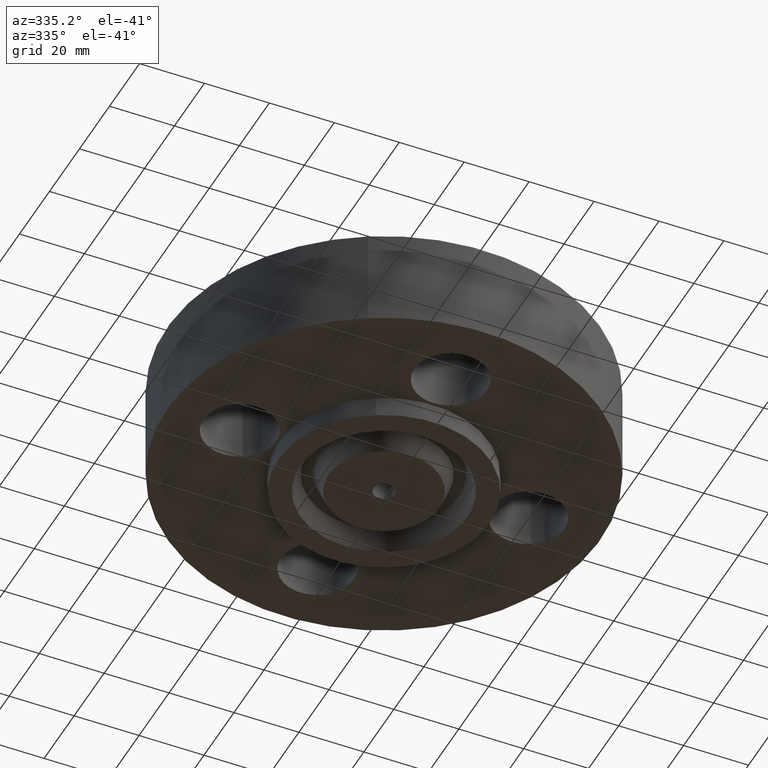
[diagram: clean part render]
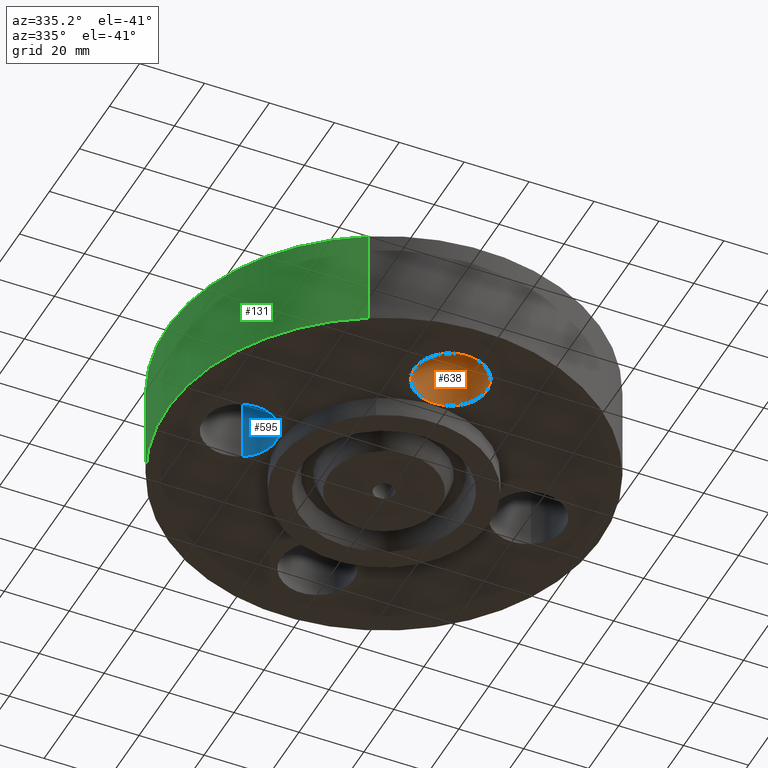
[diagram: same view with three faces highlighted in distinct colors, each labeled with its STEP entity id]
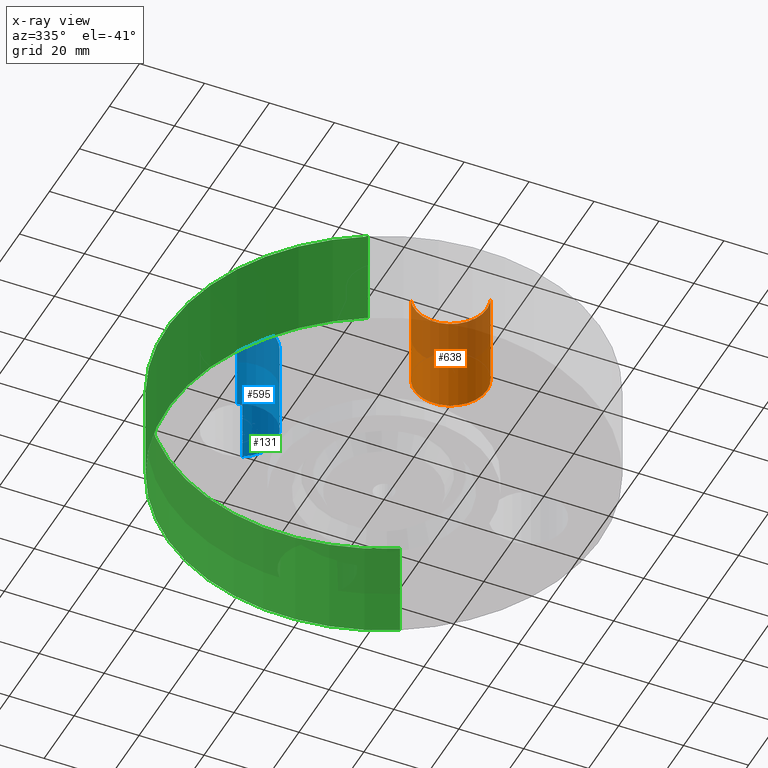
[diagram: x-ray of the same camera — body ghosted, the three highlighted faces saturated]
A machine part, auxiliary view with three faces highlighted in distinct colors.
The next image is the same camera in x-ray (body ghosted, the three faces saturated) — at least one of them is partly hidden behind the body in this view.
Their STEP definitions:

[orange] entity #638 — the highlighted cylindrical surface (partial cylindrical patch) has radius 11.176 mm, axis along (-0, 0, -1).
#527=AXIS2_PLACEMENT_3D('Circle Axis2P3D',#525,#526,$) ;
#599=AXIS2_PLACEMENT_3D('Cylinder Axis2P3D',#596,#597,#598) ;
#629=AXIS2_PLACEMENT_3D('Circle Axis2P3D',#627,#628,$) ;
#520=CARTESIAN_POINT('Vertex',(0.386136327233,-1.96094723699,0.)) ;
#522=CARTESIAN_POINT('Vertex',(-0.386136327233,-1.53905276302,0.)) ;
#525=CARTESIAN_POINT('Axis2P3D Location',(2.44773580232E-016,-1.75000000001,0.)) ;
#596=CARTESIAN_POINT('Axis2P3D Location',(2.14313189852E-016,-1.75000000001,1.18606299213)) ;
#601=CARTESIAN_POINT('Line Origine',(0.386136327233,-1.96094723699,0.595000000002)) ;
#605=CARTESIAN_POINT('Vertex',(0.386136327233,-1.96094723699,1.19)) ;
#608=CARTESIAN_POINT('Line Origine',(-0.386136327233,-1.53905276302,0.595000000002)) ;
#612=CARTESIAN_POINT('Vertex',(-0.386136327233,-1.53905276302,1.19)) ;
#627=CARTESIAN_POINT('Axis2P3D Location',(2.14313189852E-016,-1.75000000001,1.19)) ;
#526=DIRECTION('Axis2P3D Direction',(0.,0.,-0.0393700787402)) ;
#597=DIRECTION('Axis2P3D Direction',(-0.,0.,-0.0393700787402)) ;
#598=DIRECTION('Axis2P3D XDirection',(-0.0345504945626,0.0188750212049,0.)) ;
#602=DIRECTION('Vector Direction',(0.,0.,-0.0393700787402)) ;
#609=DIRECTION('Vector Direction',(0.,0.,-0.0393700787402)) ;
#628=DIRECTION('Axis2P3D Direction',(-0.,0.,-0.0393700787402)) ;
#603=VECTOR('Line Direction',#602,0.0393700787402) ;
#610=VECTOR('Line Direction',#609,0.0393700787402) ;
#633=ORIENTED_EDGE('',*,*,#614,.F.) ;
#634=ORIENTED_EDGE('',*,*,#529,.T.) ;
#635=ORIENTED_EDGE('',*,*,#607,.T.) ;
#636=ORIENTED_EDGE('',*,*,#631,.F.) ;
#638=ADVANCED_FACE('PartBody',(#637),#600,.F.) ;
#528=CIRCLE('generated circle',#527,0.440000000002) ;
#630=CIRCLE('generated circle',#629,0.440000000002) ;
#600=CYLINDRICAL_SURFACE('generated cylinder',#599,0.440000000002) ;
#529=EDGE_CURVE('',#523,#521,#528,.T.) ;
#607=EDGE_CURVE('',#521,#606,#604,.F.) ;
#614=EDGE_CURVE('',#523,#613,#611,.F.) ;
#631=EDGE_CURVE('',#613,#606,#630,.T.) ;
#632=EDGE_LOOP('',(#633,#634,#635,#636)) ;
#637=FACE_OUTER_BOUND('',#632,.T.) ;
#604=LINE('Line',#601,#603) ;
#611=LINE('Line',#608,#610) ;
#521=VERTEX_POINT('',#520) ;
#523=VERTEX_POINT('',#522) ;
#606=VERTEX_POINT('',#605) ;
#613=VERTEX_POINT('',#612) ;

[blue] entity #595 — the highlighted cylindrical surface (partial cylindrical patch) has radius 11.176 mm, axis along (0, 0, -1).
#545=AXIS2_PLACEMENT_3D('Circle Axis2P3D',#543,#544,$) ;
#556=AXIS2_PLACEMENT_3D('Cylinder Axis2P3D',#553,#554,#555) ;
#586=AXIS2_PLACEMENT_3D('Circle Axis2P3D',#584,#585,$) ;
#538=CARTESIAN_POINT('Vertex',(-1.96094723699,-0.386136327233,0.)) ;
#540=CARTESIAN_POINT('Vertex',(-1.53905276302,0.386136327233,0.)) ;
#543=CARTESIAN_POINT('Axis2P3D Location',(-1.75000000001,-2.79741234551E-016,0.)) ;
#553=CARTESIAN_POINT('Axis2P3D Location',(-1.75000000001,-3.21469784777E-016,1.18606299213)) ;
#558=CARTESIAN_POINT('Line Origine',(-1.96094723699,-0.386136327233,0.595000000002)) ;
#562=CARTESIAN_POINT('Vertex',(-1.96094723699,-0.386136327233,1.19)) ;
#565=CARTESIAN_POINT('Line Origine',(-1.53905276302,0.386136327233,0.595000000002)) ;
#569=CARTESIAN_POINT('Vertex',(-1.53905276302,0.386136327233,1.19)) ;
#584=CARTESIAN_POINT('Axis2P3D Location',(-1.75000000001,-3.21469784777E-016,1.19)) ;
#544=DIRECTION('Axis2P3D Direction',(0.,0.,-0.0393700787402)) ;
#554=DIRECTION('Axis2P3D Direction',(0.,0.,-0.0393700787402)) ;
#555=DIRECTION('Axis2P3D XDirection',(0.0188750212049,0.0345504945626,0.)) ;
#559=DIRECTION('Vector Direction',(0.,0.,-0.0393700787402)) ;
#566=DIRECTION('Vector Direction',(0.,0.,-0.0393700787402)) ;
#585=DIRECTION('Axis2P3D Direction',(0.,0.,-0.0393700787402)) ;
#560=VECTOR('Line Direction',#559,0.0393700787402) ;
#567=VECTOR('Line Direction',#566,0.0393700787402) ;
#590=ORIENTED_EDGE('',*,*,#571,.F.) ;
#591=ORIENTED_EDGE('',*,*,#547,.T.) ;
#592=ORIENTED_EDGE('',*,*,#564,.T.) ;
#593=ORIENTED_EDGE('',*,*,#588,.F.) ;
#595=ADVANCED_FACE('PartBody',(#594),#557,.F.) ;
#546=CIRCLE('generated circle',#545,0.440000000002) ;
#587=CIRCLE('generated circle',#586,0.440000000002) ;
#557=CYLINDRICAL_SURFACE('generated cylinder',#556,0.440000000002) ;
#547=EDGE_CURVE('',#541,#539,#546,.T.) ;
#564=EDGE_CURVE('',#539,#563,#561,.F.) ;
#571=EDGE_CURVE('',#541,#570,#568,.F.) ;
#588=EDGE_CURVE('',#570,#563,#587,.T.) ;
#589=EDGE_LOOP('',(#590,#591,#592,#593)) ;
#594=FACE_OUTER_BOUND('',#589,.T.) ;
#561=LINE('Line',#558,#560) ;
#568=LINE('Line',#565,#567) ;
#539=VERTEX_POINT('',#538) ;
#541=VERTEX_POINT('',#540) ;
#563=VERTEX_POINT('',#562) ;
#570=VERTEX_POINT('',#569) ;

[green] entity #131 — the highlighted cylindrical surface (partial cylindrical patch) has radius 66.675 mm, axis along (0, 0, -1).
#95=AXIS2_PLACEMENT_3D('Cylinder Axis2P3D',#92,#93,#94) ;
#99=AXIS2_PLACEMENT_3D('Circle Axis2P3D',#97,#98,$) ;
#115=AXIS2_PLACEMENT_3D('Circle Axis2P3D',#113,#114,$) ;
#92=CARTESIAN_POINT('Axis2P3D Location',(0.,0.,1.31500000001)) ;
#97=CARTESIAN_POINT('Axis2P3D Location',(0.,0.,2.79741234551E-016)) ;
#101=CARTESIAN_POINT('Vertex',(-1.25849203884,-2.30365422497,2.79741234551E-016)) ;
#103=CARTESIAN_POINT('Vertex',(1.25849203884,2.30365422497,2.79741234551E-016)) ;
#106=CARTESIAN_POINT('Line Origine',(-1.25849203884,-2.30365422497,0.595000000002)) ;
#110=CARTESIAN_POINT('Vertex',(-1.25849203884,-2.30365422497,1.19)) ;
#113=CARTESIAN_POINT('Axis2P3D Location',(0.,0.,1.19)) ;
#117=CARTESIAN_POINT('Vertex',(1.25849203884,2.30365422497,1.19)) ;
#120=CARTESIAN_POINT('Line Origine',(1.25849203884,2.30365422497,0.595000000002)) ;
#93=DIRECTION('Axis2P3D Direction',(0.,0.,-0.0393700787402)) ;
#94=DIRECTION('Axis2P3D XDirection',(0.0188750212049,0.0345504945626,0.)) ;
#98=DIRECTION('Axis2P3D Direction',(0.,0.,-0.0393700787402)) ;
#107=DIRECTION('Vector Direction',(0.,0.,-0.0393700787402)) ;
#114=DIRECTION('Axis2P3D Direction',(0.,0.,-0.0393700787402)) ;
#121=DIRECTION('Vector Direction',(0.,0.,-0.0393700787402)) ;
#108=VECTOR('Line Direction',#107,0.0393700787402) ;
#122=VECTOR('Line Direction',#121,0.0393700787402) ;
#126=ORIENTED_EDGE('',*,*,#105,.F.) ;
#127=ORIENTED_EDGE('',*,*,#112,.T.) ;
#128=ORIENTED_EDGE('',*,*,#119,.T.) ;
#129=ORIENTED_EDGE('',*,*,#124,.F.) ;
#131=ADVANCED_FACE('PartBody',(#130),#96,.T.) ;
#100=CIRCLE('generated circle',#99,2.62500000001) ;
#116=CIRCLE('generated circle',#115,2.62500000001) ;
#96=CYLINDRICAL_SURFACE('generated cylinder',#95,2.62500000001) ;
#105=EDGE_CURVE('',#102,#104,#100,.T.) ;
#112=EDGE_CURVE('',#102,#111,#109,.F.) ;
#119=EDGE_CURVE('',#111,#118,#116,.T.) ;
#124=EDGE_CURVE('',#104,#118,#123,.F.) ;
#125=EDGE_LOOP('',(#126,#127,#128,#129)) ;
#130=FACE_OUTER_BOUND('',#125,.T.) ;
#109=LINE('Line',#106,#108) ;
#123=LINE('Line',#120,#122) ;
#102=VERTEX_POINT('',#101) ;
#104=VERTEX_POINT('',#103) ;
#111=VERTEX_POINT('',#110) ;
#118=VERTEX_POINT('',#117) ;